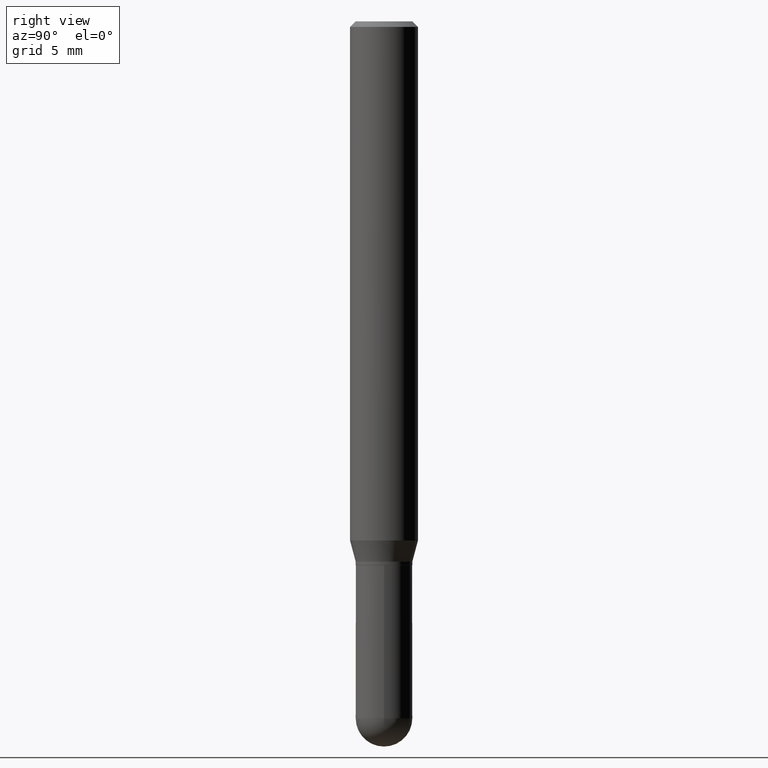
[diagram: clean part render]
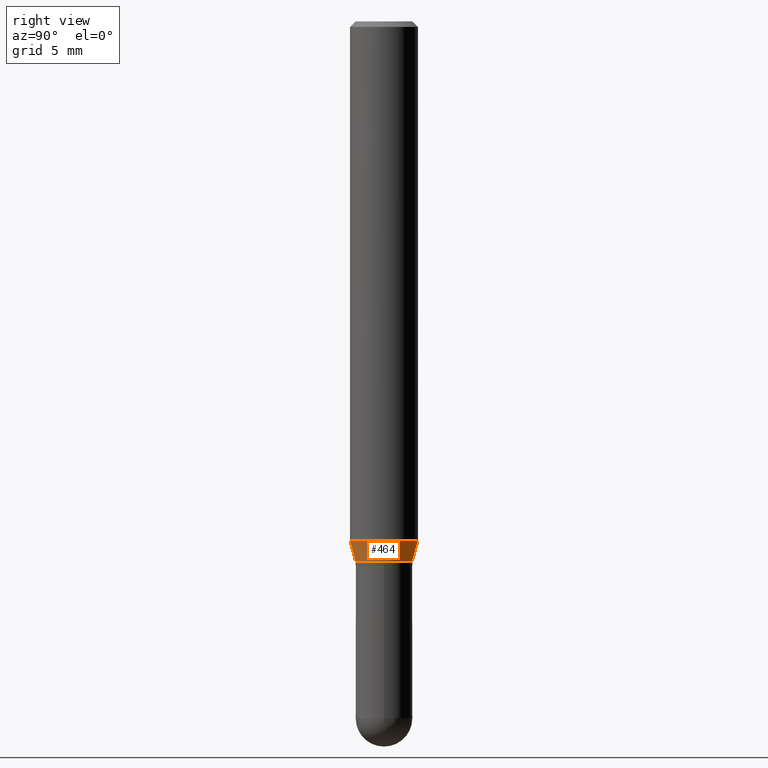
[diagram: same view with one face highlighted and labeled with its STEP entity id]
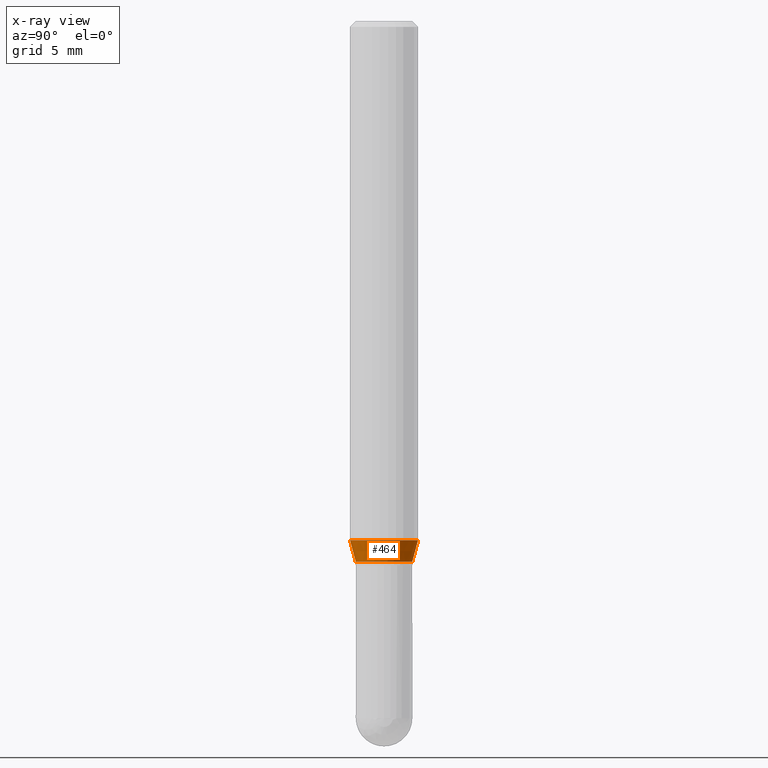
[diagram: x-ray of the same camera — body ghosted, the highlighted face saturated]
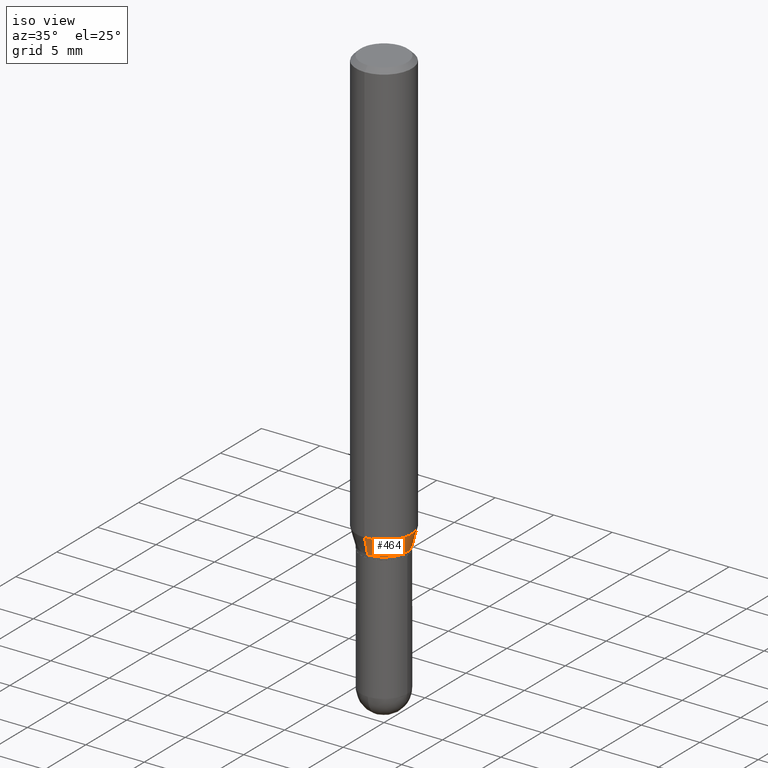
[diagram: same view with one face highlighted and labeled with its STEP entity id]
A machine part, right view. The second image highlights one B-rep face of the part: STEP entity #464.
The next image is the same camera in x-ray: the body ghosted, the highlighted face saturated — about 0% of this face is hidden behind the body in this view.
A second angle (iso view) of the same face is appended — the face is thin or edge-on in the first view.
In plain terms, the highlighted conical surface has half-angle 15 deg.
Its self-contained STEP definition (entity closure, byte-faithful):
#7 = EDGE_CURVE ( 'NONE', #346, #276, #386, .T. ) ;
#18 = EDGE_CURVE ( 'NONE', #494, #300, #29, .T. ) ;
#29 = LINE ( 'NONE', #500, #191 ) ;
#31 = AXIS2_PLACEMENT_3D ( 'NONE', #321, #395, #412 ) ;
#43 = CARTESIAN_POINT ( 'NONE',  ( -5.453693851272583878E-16, -0.07810000000000484610, -1.489999999999999769 ) ) ;
#58 = CARTESIAN_POINT ( 'NONE',  ( 6.661338147751288313E-16, 0.09374999999999500400, -1.431593404861545960 ) ) ;
#74 = CIRCLE ( 'NONE', #31, 0.09375000000000001388 ) ;
#122 = DIRECTION ( 'NONE',  ( -6.982962677686265922E-15, -1.000000000000000000, 3.497884755011876582E-15 ) ) ;
#129 = AXIS2_PLACEMENT_3D ( 'NONE', #512, #307, #234 ) ;
#144 = DIRECTION ( 'NONE',  ( -1.807323732225326589E-15, -0.2588190451025176864, 0.9659258262890690894 ) ) ;
#147 = FACE_OUTER_BOUND ( 'NONE', #306, .T. ) ;
#183 = DIRECTION ( 'NONE',  ( 1.839019923739596765E-15, 0.2588190451025244587, 0.9659258262890673130 ) ) ;
#191 = VECTOR ( 'NONE', #144, 39.37007874015748854 ) ;
#201 = CARTESIAN_POINT ( 'NONE',  ( 6.105338457019004099E-16, 0.07809999999999443776, -1.490000000000000213 ) ) ;
#234 = DIRECTION ( 'NONE',  ( -6.982962677686265922E-15, -1.000000000000000000, 3.497884755011876582E-15 ) ) ;
#239 = EDGE_CURVE ( 'NONE', #300, #276, #74, .T. ) ;
#249 = ORIENTED_EDGE ( 'NONE', *, *, #7, .T. ) ;
#276 = VERTEX_POINT ( 'NONE', #58 ) ;
#292 = ORIENTED_EDGE ( 'NONE', *, *, #239, .F. ) ;
#300 = VERTEX_POINT ( 'NONE', #409 ) ;
#306 = EDGE_LOOP ( 'NONE', ( #432, #249, #292, #467 ) ) ;
#307 = DIRECTION ( 'NONE',  ( -2.445022562880343100E-29, 3.492120384654201603E-15, 1.000000000000000000 ) ) ;
#321 = CARTESIAN_POINT ( 'NONE',  ( 3.500278175757173363E-29, -4.999296511653519155E-15, -1.431593404861545737 ) ) ;
#346 = VERTEX_POINT ( 'NONE', #201 ) ;
#351 = CARTESIAN_POINT ( 'NONE',  ( 5.549338766286719885E-16, 0.07809999999999443776, -1.490000000000000213 ) ) ;
#366 = CIRCLE ( 'NONE', #462, 0.07809999999999964193 ) ;
#386 = LINE ( 'NONE', #351, #437 ) ;
#392 = CARTESIAN_POINT ( 'NONE',  ( 3.643083618691710816E-29, -5.203259373134759868E-15, -1.489999999999999991 ) ) ;
#395 = DIRECTION ( 'NONE',  ( -2.445022562880343100E-29, 3.492120384654201603E-15, 1.000000000000000000 ) ) ;
#399 = CONICAL_SURFACE ( 'NONE', #129, 0.07809999999999964193, 0.2617993877991497409 ) ;
#409 = CARTESIAN_POINT ( 'NONE',  ( -6.546527510330523012E-16, -0.09375000000000500988, -1.431593404861545515 ) ) ;
#412 = DIRECTION ( 'NONE',  ( -6.982962677686265922E-15, -1.000000000000000000, 2.913971193241880372E-15 ) ) ;
#432 = ORIENTED_EDGE ( 'NONE', *, *, #507, .T. ) ;
#437 = VECTOR ( 'NONE', #183, 39.37007874015748143 ) ;
#462 = AXIS2_PLACEMENT_3D ( 'NONE', #392, #471, #122 ) ;
#464 = ADVANCED_FACE ( 'NONE', ( #147 ), #399, .T. ) ;
#467 = ORIENTED_EDGE ( 'NONE', *, *, #18, .F. ) ;
#471 = DIRECTION ( 'NONE',  ( -2.445022562880343100E-29, 3.492120384654201603E-15, 1.000000000000000000 ) ) ;
#494 = VERTEX_POINT ( 'NONE', #43 ) ;
#500 = CARTESIAN_POINT ( 'NONE',  ( -5.453693851272583878E-16, -0.07810000000000484610, -1.489999999999999769 ) ) ;
#507 = EDGE_CURVE ( 'NONE', #494, #346, #366, .T. ) ;
#512 = CARTESIAN_POINT ( 'NONE',  ( 3.643083618691710816E-29, -5.203259373134759868E-15, -1.489999999999999991 ) ) ;